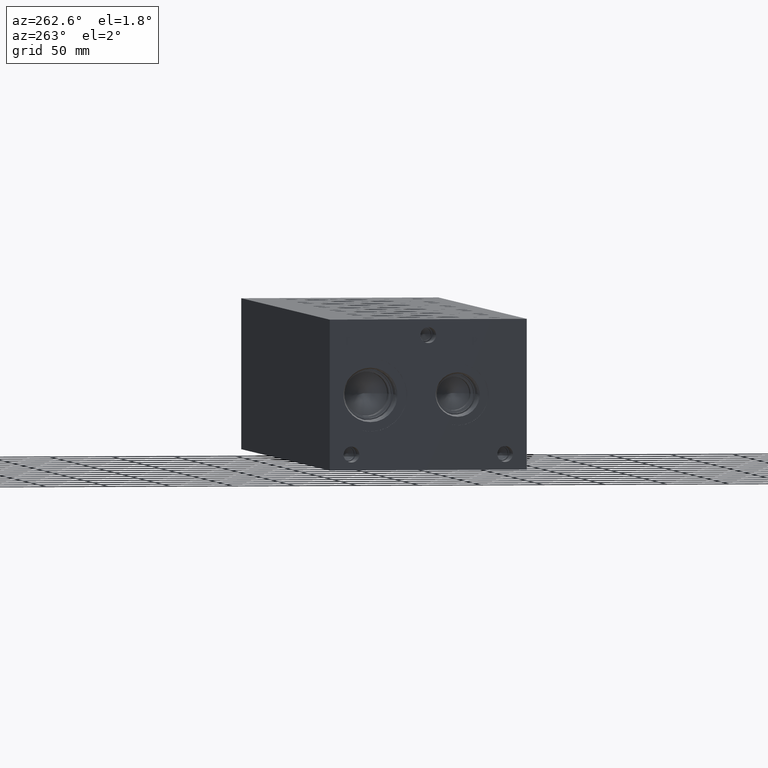
[diagram: clean part render]
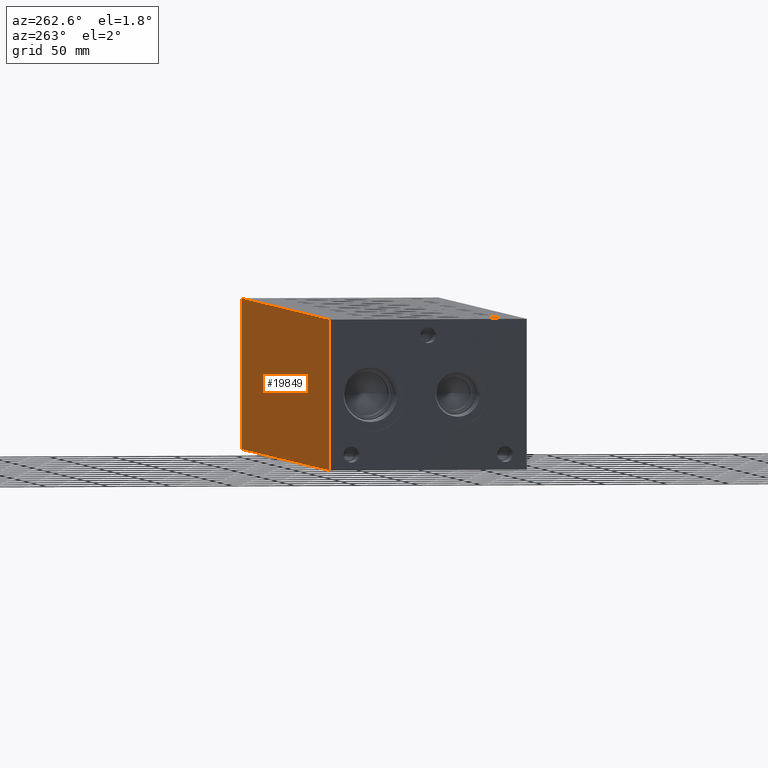
[diagram: same view with one face highlighted and labeled with its STEP entity id]
A machine part, auxiliary view. The second image highlights one B-rep face of the part: STEP entity #19849.
In plain terms, the highlighted planar face has unit normal (0, 1, 0).
Its self-contained STEP definition (entity closure, byte-faithful):
#2906=FACE_OUTER_BOUND('',#4111,.T.);
#4111=EDGE_LOOP('',(#17551,#17552,#17553,#17554));
#4823=LINE('',#29322,#6489);
#4883=LINE('',#29599,#6549);
#5845=LINE('',#34386,#7511);
#5846=LINE('',#34387,#7512);
#6489=VECTOR('',#22461,10.);
#6549=VECTOR('',#22579,10.);
#7511=VECTOR('',#26347,10.);
#7512=VECTOR('',#26348,10.);
#8194=VERTEX_POINT('',#29319);
#8195=VERTEX_POINT('',#29321);
#8254=VERTEX_POINT('',#29595);
#8255=VERTEX_POINT('',#29597);
#10321=EDGE_CURVE('',#8194,#8195,#4823,.T.);
#10407=EDGE_CURVE('',#8254,#8255,#4883,.T.);
#12195=EDGE_CURVE('',#8194,#8254,#5845,.T.);
#12196=EDGE_CURVE('',#8195,#8255,#5846,.T.);
#17551=ORIENTED_EDGE('',*,*,#12195,.T.);
#17552=ORIENTED_EDGE('',*,*,#10407,.T.);
#17553=ORIENTED_EDGE('',*,*,#12196,.F.);
#17554=ORIENTED_EDGE('',*,*,#10321,.F.);
#18213=PLANE('',#21470);
#19849=ADVANCED_FACE('',(#2906),#18213,.T.);
#21470=AXIS2_PLACEMENT_3D('',#34385,#26345,#26346);
#22461=DIRECTION('',(0.,0.,1.));
#22579=DIRECTION('',(0.,0.,1.));
#26345=DIRECTION('center_axis',(0.,1.,0.));
#26346=DIRECTION('ref_axis',(-1.,0.,0.));
#26347=DIRECTION('',(-1.,0.,0.));
#26348=DIRECTION('',(-1.,0.,0.));
#29319=CARTESIAN_POINT('',(549.2496,158.75,0.));
#29321=CARTESIAN_POINT('',(549.2496,158.75,120.65));
#29322=CARTESIAN_POINT('',(549.2496,158.75,0.));
#29595=CARTESIAN_POINT('',(0.,158.75,0.));
#29597=CARTESIAN_POINT('',(0.,158.75,120.65));
#29599=CARTESIAN_POINT('',(0.,158.75,0.));
#34385=CARTESIAN_POINT('Origin',(549.2496,158.75,0.));
#34386=CARTESIAN_POINT('',(549.2496,158.75,0.));
#34387=CARTESIAN_POINT('',(549.2496,158.75,120.65));